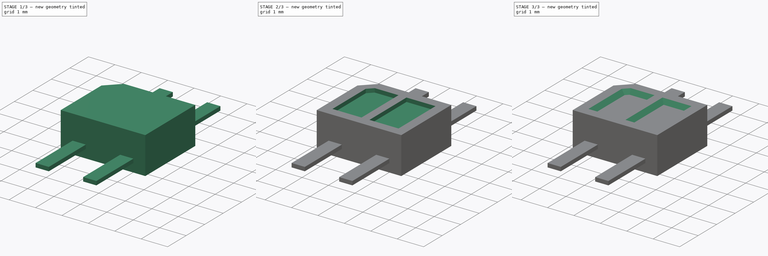
[diagram: build sequence overview — one tinted view per stage of 3, left to right]
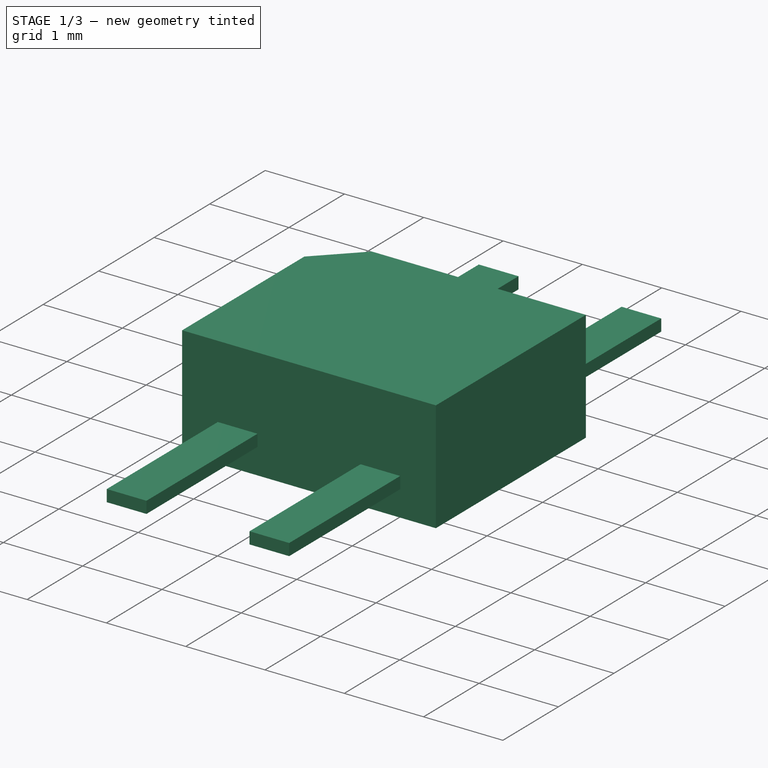
[diagram: stage 1 of 3 — iso view after this stage's code; geometry added in this stage tinted green]
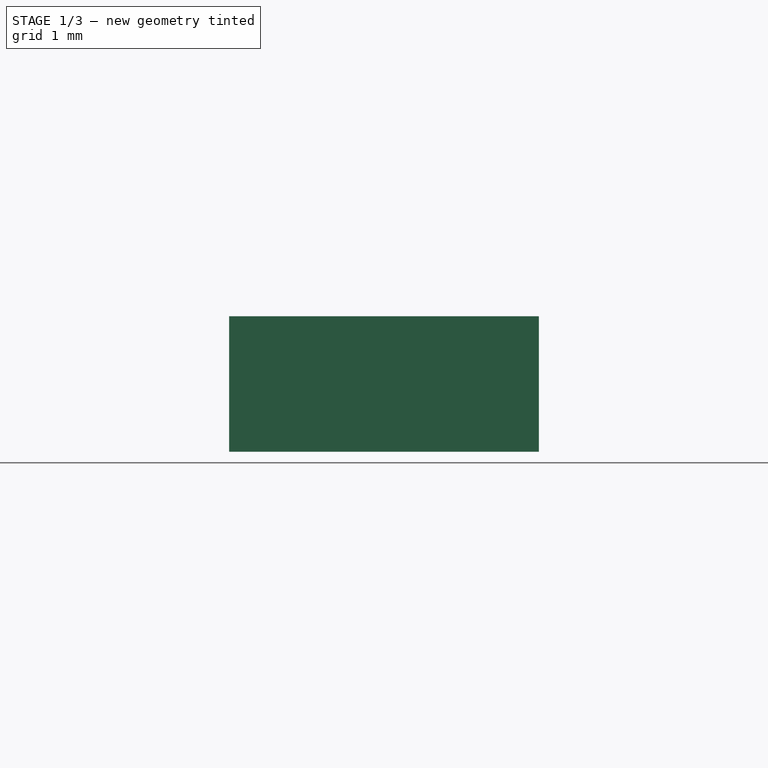
[diagram: stage 1 of 3 — front view after this stage's code; geometry added in this stage tinted green]
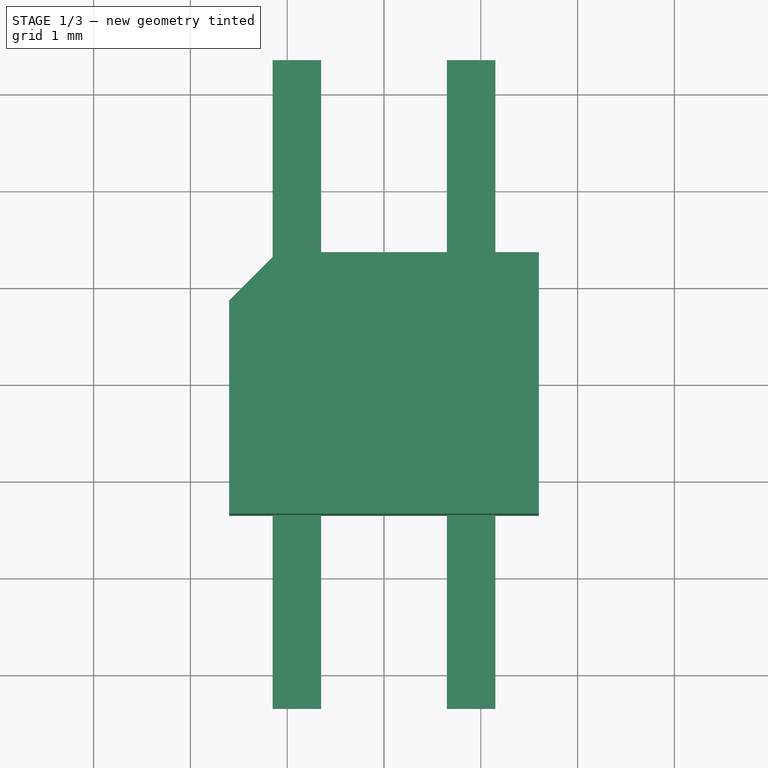
[diagram: stage 1 of 3 — top view after this stage's code; geometry added in this stage tinted green]
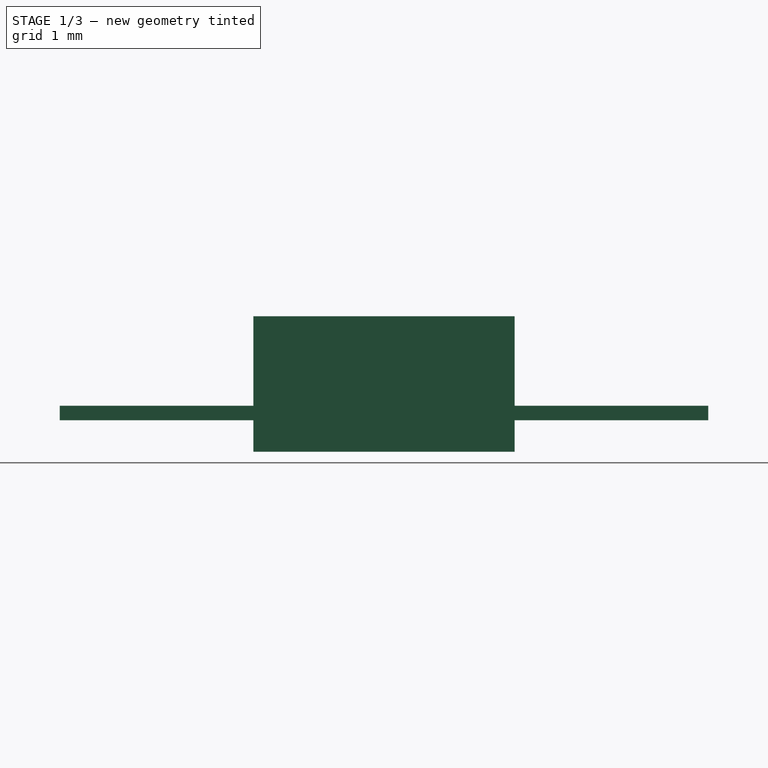
[diagram: stage 1 of 3 — right view after this stage's code; geometry added in this stage tinted green]
FCSTD DOCUMENT  (FreeCAD 0.16R6712 (Git))
Label: Everlight_ITR8307
License: All rights reserved
LicenseURL: http://en.wikipedia.org/wiki/All_rights_reserved
objects: Sketcher::SketchObject×3, PartDesign::Pad×2, PartDesign::Pocket×1, PartDesign::Chamfer×1, Part::MultiFuse×1
note: 11 computed .brp shape members not serialized (recipe doc carries the construction recipe); baked Part::Feature solids carry a one-line shape summary decoded from their .brp

FEATURE [Sketcher::SketchObject] Sketch
  sketch-geometry (7):
    g0: LineSegment StartX=-1.1 StartY=1.35 StartZ=0 EndX=1.6 EndY=1.35 EndZ=0
    g1: LineSegment StartX=1.6 StartY=1.35 StartZ=0 EndX=1.6 EndY=-1.35 EndZ=0
    g2: LineSegment StartX=1.6 StartY=-1.35 StartZ=0 EndX=-1.6 EndY=-1.35 EndZ=0
    g3: LineSegment StartX=-1.6 StartY=-1.35 StartZ=0 EndX=-1.6 EndY=0.85 EndZ=0
    g4: LineSegment StartX=-1.6 StartY=0.85 StartZ=0 EndX=-1.1 EndY=1.35 EndZ=0
    g5: LineSegment [constr] StartX=-1.6 StartY=0 StartZ=0 EndX=1.6 EndY=0 EndZ=0
    g6: LineSegment [constr] StartX=0 StartY=1.35 StartZ=0 EndX=0 EndY=-1.35 EndZ=0
  constraints (23):
    c: Coincident(g0,g1)
    c: Coincident(g1,g2)
    c: Coincident(g2,g3)
    c: Horizontal(g0)
    c: Horizontal(g2)
    c: Vertical(g1)
    c: Vertical(g3)
    c: PointOnObject(g4,g3)
    c: PointOnObject(g4,g0)
    c: Coincident(g0,g4)
    c: Coincident(g3,g4)
    c: Angle(g3,g4) = 2.35619
    c: DistanceX(g2,g2) = 3.2
    c: DistanceY(g1,g1) = 2.7
    c: DistanceY(g3,g0) = 0.5
    c: PointOnObject(g5,g1)
    c: Horizontal(g5)
    c: Vertical(g6)
    c: PointOnObject(g6,g2)
    c: Symmetric(g2,g2,g6)
    c: Symmetric(g1,g1,g5)
    c: Symmetric(g5,g5,g-1)
    c: Symmetric(g6,g6,g-1)
FEATURE [PartDesign::Pad] Pad
  Length = 1
  Length2 = 0.4
  Sketch = -> Sketch
  Type = 4
FEATURE [Sketcher::SketchObject] Sketch002
  sketch-geometry (9):
    g0: LineSegment StartX=-1.15 StartY=3.35 StartZ=0 EndX=-0.65 EndY=3.35 EndZ=0
    g1: LineSegment StartX=-0.65 StartY=3.35 StartZ=0 EndX=-0.65 EndY=-3.35 EndZ=0
    g2: LineSegment StartX=-0.65 StartY=-3.35 StartZ=0 EndX=-1.15 EndY=-3.35 EndZ=0
    g3: LineSegment StartX=-1.15 StartY=-3.35 StartZ=0 EndX=-1.15 EndY=3.35 EndZ=0
    g4: LineSegment StartX=0.65 StartY=3.35 StartZ=0 EndX=1.15 EndY=3.35 EndZ=0
    g5: LineSegment StartX=1.15 StartY=3.35 StartZ=0 EndX=1.15 EndY=-3.35 EndZ=0
    g6: LineSegment StartX=1.15 StartY=-3.35 StartZ=0 EndX=0.65 EndY=-3.35 EndZ=0
    g7: LineSegment StartX=0.65 StartY=-3.35 StartZ=0 EndX=0.65 EndY=3.35 EndZ=0
    g8: LineSegment [constr] StartX=-0.65 StartY=0 StartZ=0 EndX=0.65 EndY=0 EndZ=0
  constraints (28):
    c: Coincident(g0,g1)
    c: Coincident(g1,g2)
    c: Coincident(g2,g3)
    c: Coincident(g3,g0)
    c: Horizontal(g0)
    c: Horizontal(g2)
    c: Vertical(g1)
    c: Vertical(g3)
    c: Coincident(g4,g5)
    c: Coincident(g5,g6)
    c: Coincident(g6,g7)
    c: Coincident(g7,g4)
    c: Horizontal(g4)
    c: Horizontal(g6)
    c: Vertical(g5)
    c: Vertical(g7)
    c: PointOnObject(g8,g1)
    c: PointOnObject(g8,g7)
    c: Horizontal(g8)
    c: PointOnObject(g-1,g8)
    c: Symmetric(g8,g8,g-1)
    c: Equal(g1,g7)
    c: Equal(g6,g2)
    c: Symmetric(g1,g1,g8)
    c: Symmetric(g7,g7,g8)
    c: DistanceX(g2,g6) = 1.8
    c: DistanceX(g6,g6) = 0.5
    c: DistanceY(g5,g5) = 6.7
FEATURE [PartDesign::Pad] Pad001
  Length = 0.15
  Length2 = 100
  Midplane = true
  Sketch = -> Sketch002
  Type = 0
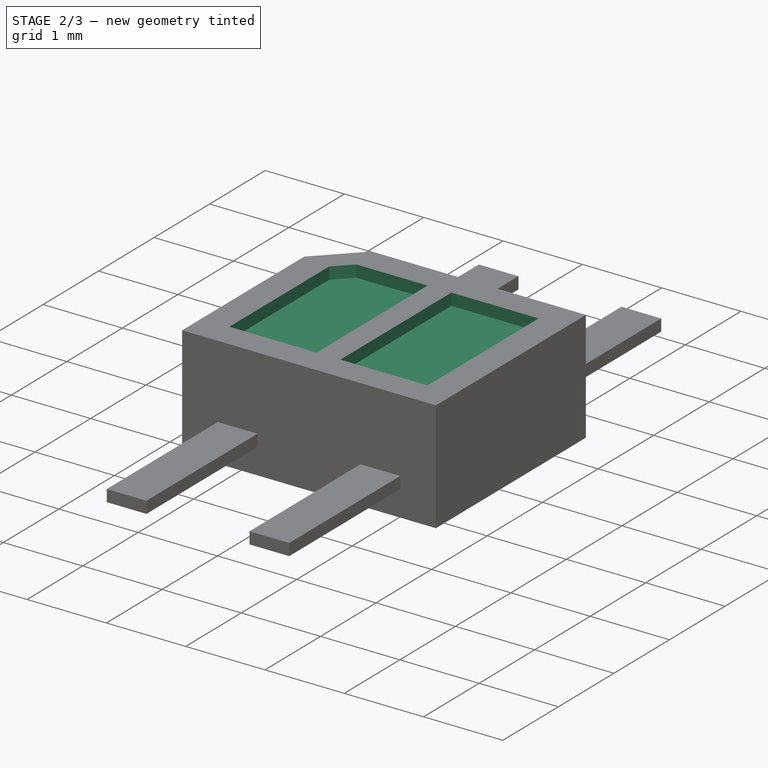
[diagram: stage 2 of 3 — iso view after this stage's code; geometry added in this stage tinted green]
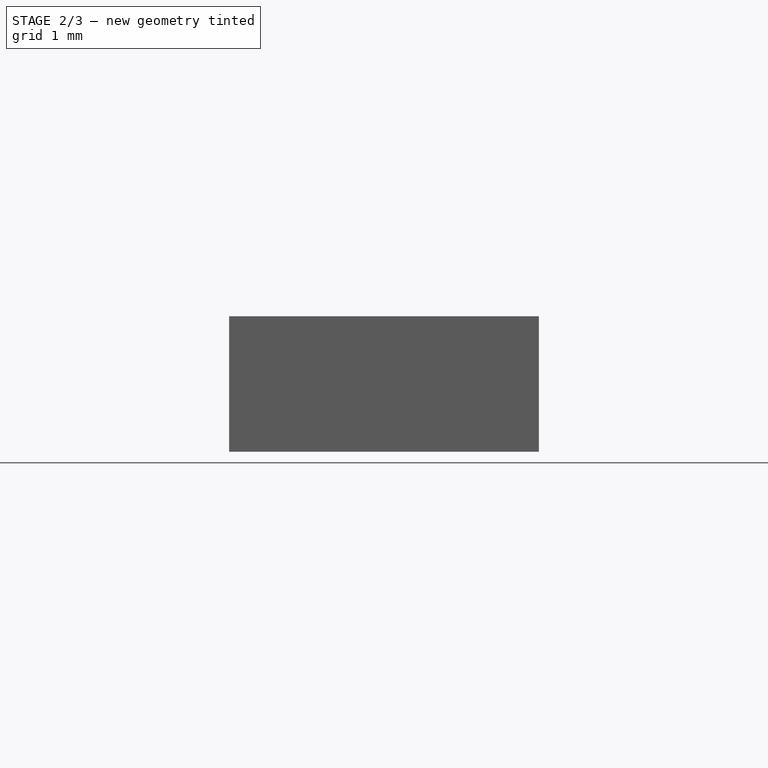
[diagram: stage 2 of 3 — front view after this stage's code; geometry added in this stage tinted green]
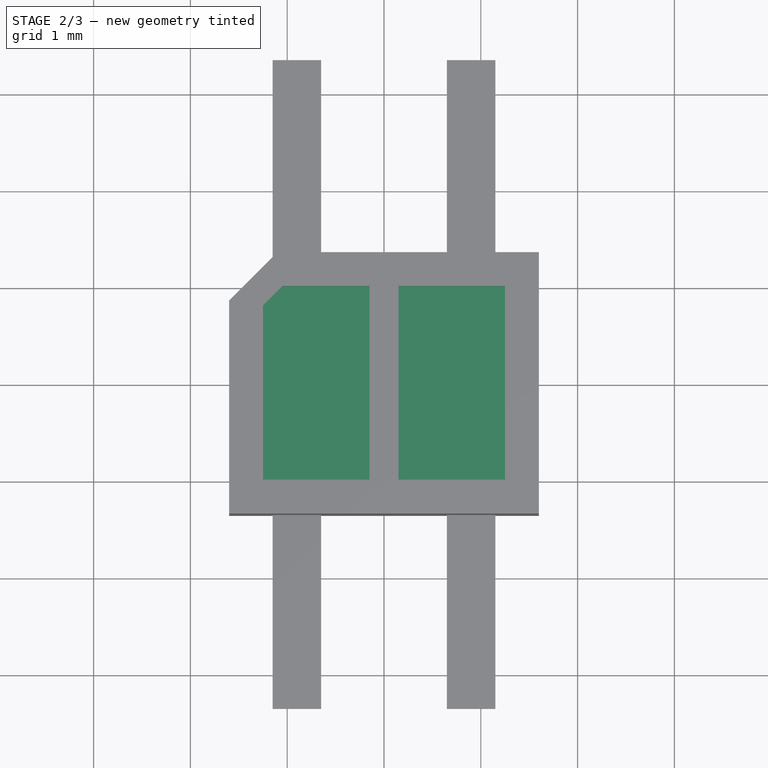
[diagram: stage 2 of 3 — top view after this stage's code; geometry added in this stage tinted green]
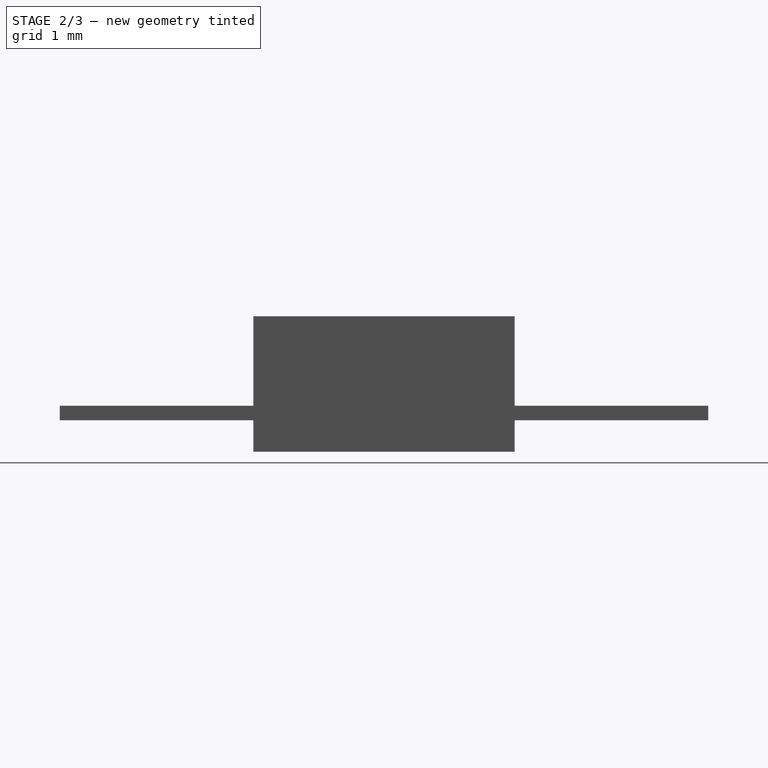
[diagram: stage 2 of 3 — right view after this stage's code; geometry added in this stage tinted green]
FEATURE [Sketcher::SketchObject] Sketch001
  Placement = pos=(0,0,1) rot=(0,0,1;0rad)
  Support = -> Pad [Face7]
  sketch-geometry (10):
    g0: LineSegment StartX=-1.25 StartY=-1 StartZ=0 EndX=-0.15 EndY=-1 EndZ=0
    g1: LineSegment StartX=-0.15 StartY=-1 StartZ=0 EndX=-0.15 EndY=1 EndZ=0
    g2: LineSegment StartX=-0.15 StartY=1 StartZ=0 EndX=-1.05 EndY=1 EndZ=0
    g3: LineSegment StartX=-1.25 StartY=0.8 StartZ=0 EndX=-1.25 EndY=-1 EndZ=0
    g4: LineSegment StartX=0.15 StartY=1 StartZ=0 EndX=1.25 EndY=1 EndZ=0
    g5: LineSegment StartX=1.25 StartY=1 StartZ=0 EndX=1.25 EndY=-1 EndZ=0
    g6: LineSegment StartX=1.25 StartY=-1 StartZ=0 EndX=0.15 EndY=-1 EndZ=0
    g7: LineSegment StartX=0.15 StartY=-1 StartZ=0 EndX=0.15 EndY=1 EndZ=0
    g8: LineSegment [constr] StartX=-0.15 StartY=0 StartZ=0 EndX=0.15 EndY=0 EndZ=0
    g9: LineSegment StartX=-1.25 StartY=0.8 StartZ=0 EndX=-1.05 EndY=1 EndZ=0
  constraints (33):
    c: Coincident(g0,g1)
    c: Coincident(g1,g2)
    c: Coincident(g3,g0)
    c: Horizontal(g0)
    c: Horizontal(g2)
    c: Vertical(g1)
    c: Vertical(g3)
    c: Coincident(g4,g5)
    c: Coincident(g5,g6)
    c: Coincident(g6,g7)
    c: Coincident(g7,g4)
    c: Horizontal(g4)
    c: Horizontal(g6)
    c: Vertical(g5)
    c: Vertical(g7)
    c: DistanceY(g0,g6) = 0
    c: Equal(g7,g1)
    c: Equal(g0,g6)
    c: PointOnObject(g8,g7)
    c: Horizontal(g8)
    c: PointOnObject(g8,g1)
    c: PointOnObject(g-1,g8)
    c: Symmetric(g8,g8,g-1)
    c: Symmetric(g1,g1,g8)
    c: DistanceY(g5,g5) = 2
    c: PointOnObject(g9,g3)
    c: PointOnObject(g9,g2)
    c: Angle(g2,g9) = 0.785398
    c: Coincident(g9,g2)
    c: Coincident(g3,g9)
    c: DistanceY(g3,g2) = 0.2
    c: DistanceX(g0,g0) = 1.1
    c: DistanceX(g0,g6) = 1.4
FEATURE [PartDesign::Pocket] Pocket
  Length = 0.151
  Sketch = -> Sketch001
  Type = 0
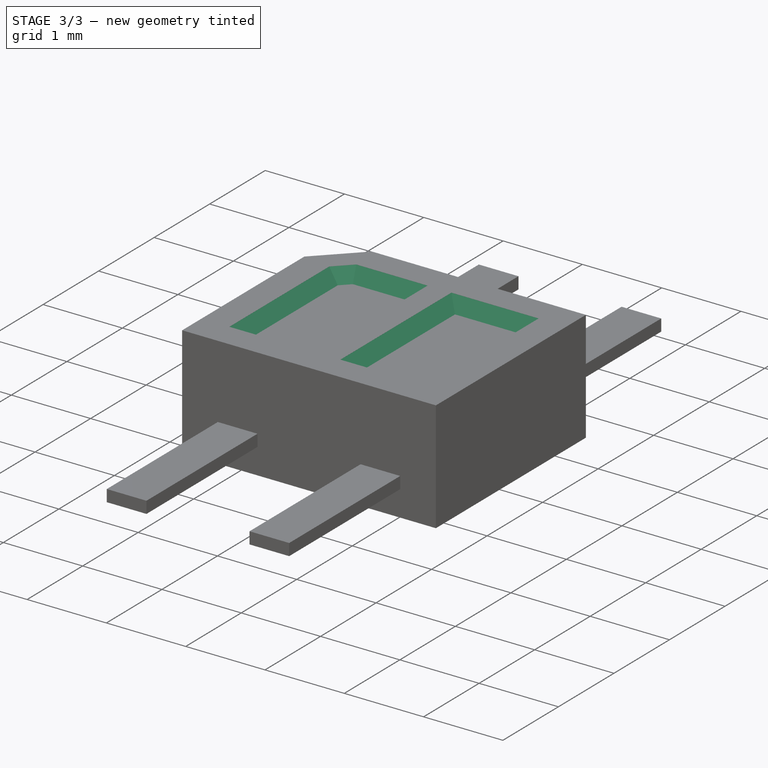
[diagram: stage 3 of 3 — iso view after this stage's code; geometry added in this stage tinted green]
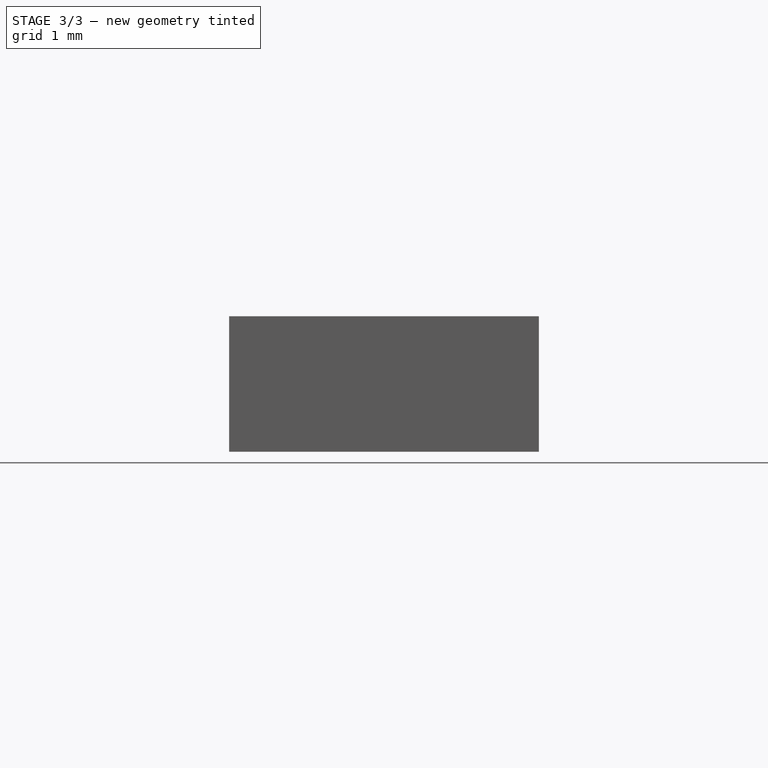
[diagram: stage 3 of 3 — front view after this stage's code; geometry added in this stage tinted green]
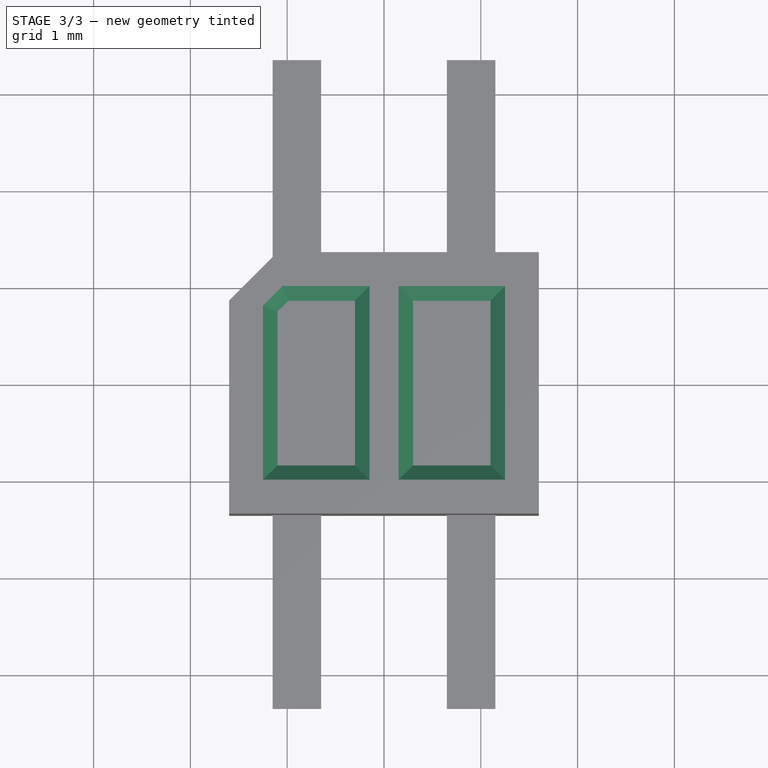
[diagram: stage 3 of 3 — top view after this stage's code; geometry added in this stage tinted green]
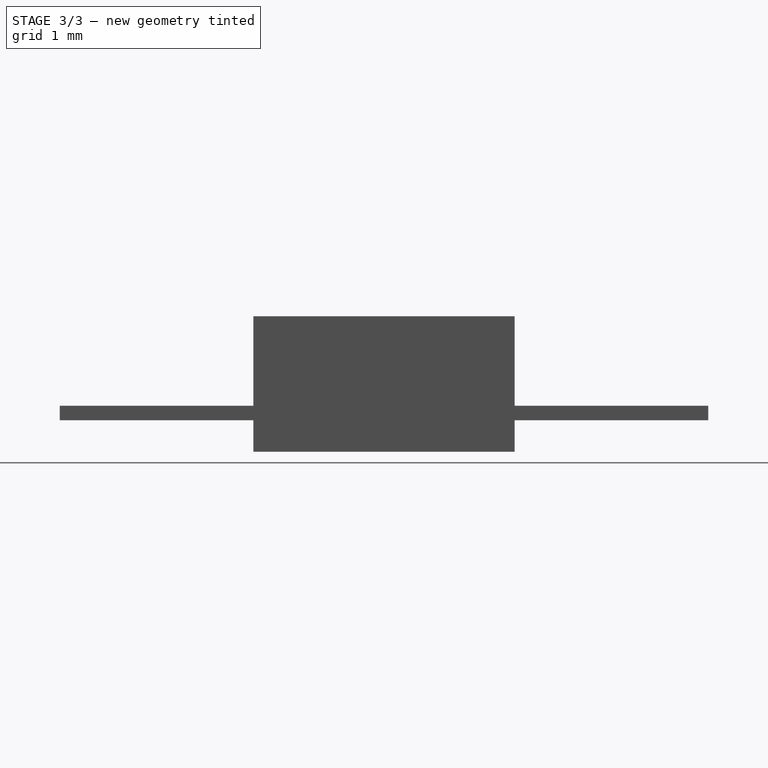
[diagram: stage 3 of 3 — right view after this stage's code; geometry added in this stage tinted green]
FEATURE [PartDesign::Chamfer] Chamfer
  Base = -> Pocket [Edge33,Edge30,Edge34,Edge36,Edge42,Edge41,Edge28,Edge39,Edge26]
  Size = 0.15
FEATURE [Part::MultiFuse] Chamfer_mp_cp  label="Everlight_ITR8307"
  Shapes = -> [Chamfer,Pad001]
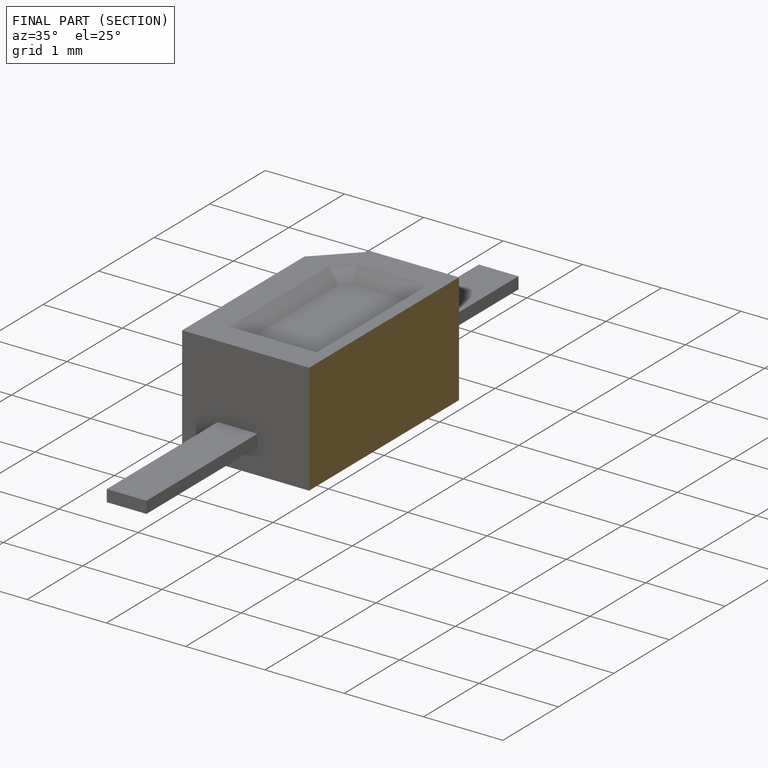
[diagram: finished part — half-section view (interior)]
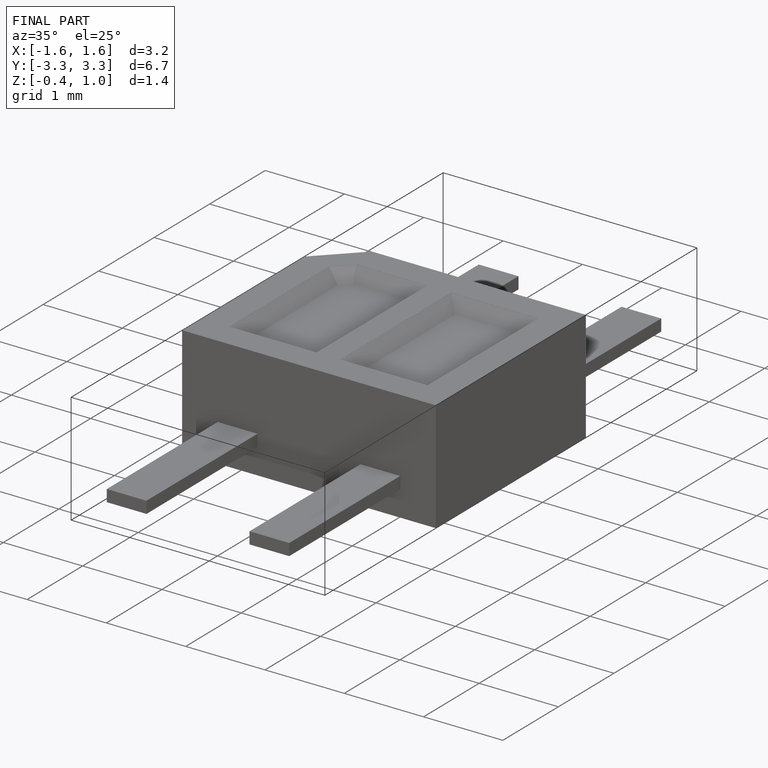
[diagram: finished part — iso view with bounding-box wireframe]
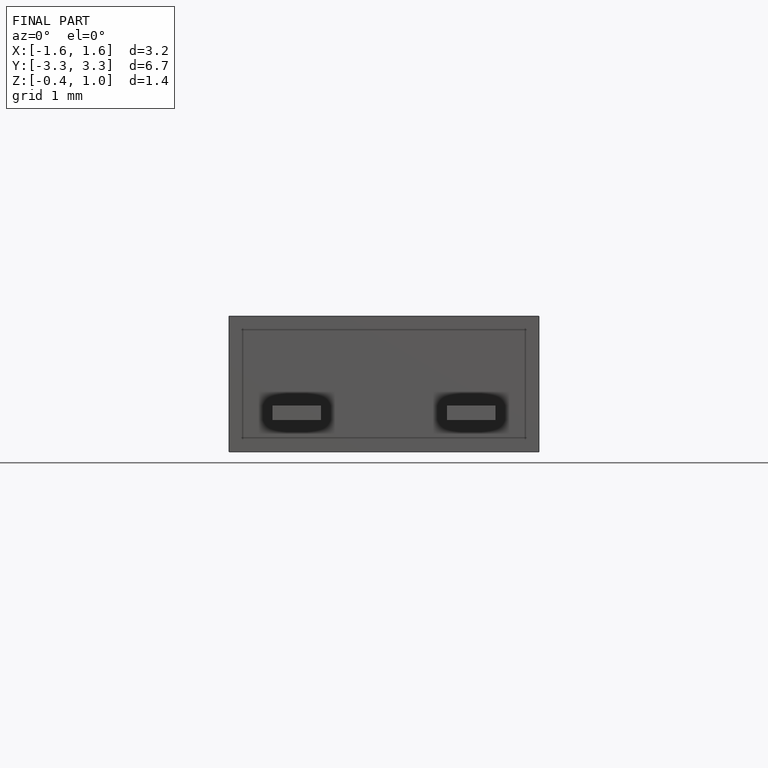
[diagram: finished part — front view with bounding-box wireframe]
